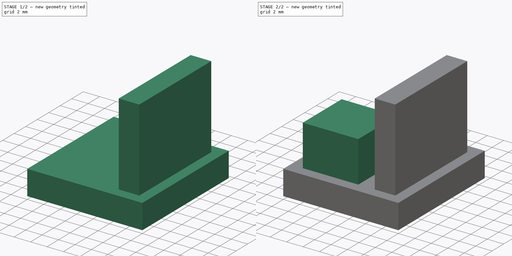
[diagram: build sequence overview — one tinted view per stage of 2, left to right]
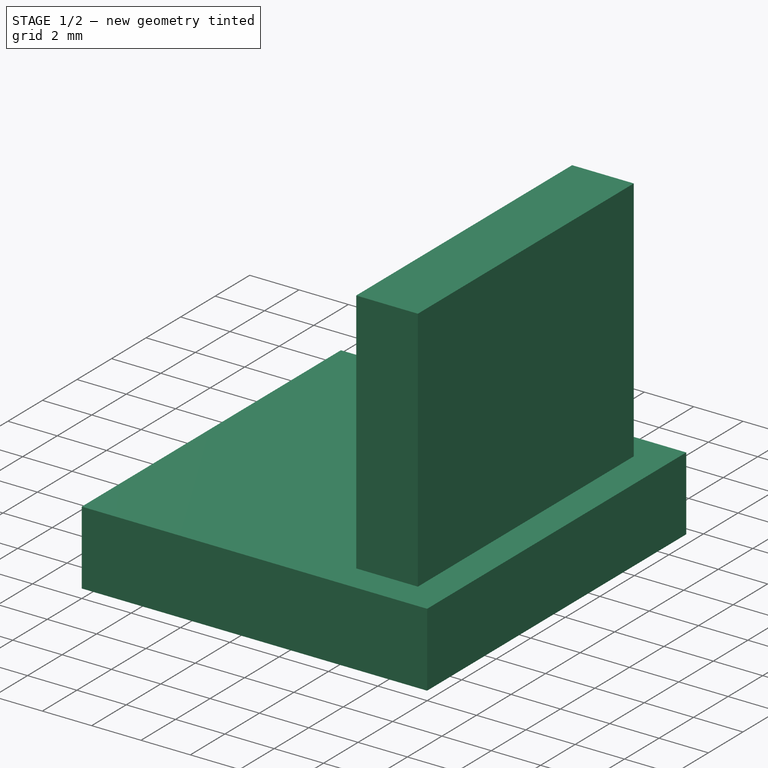
[diagram: stage 1 of 2 — iso view after this stage's code; geometry added in this stage tinted green]
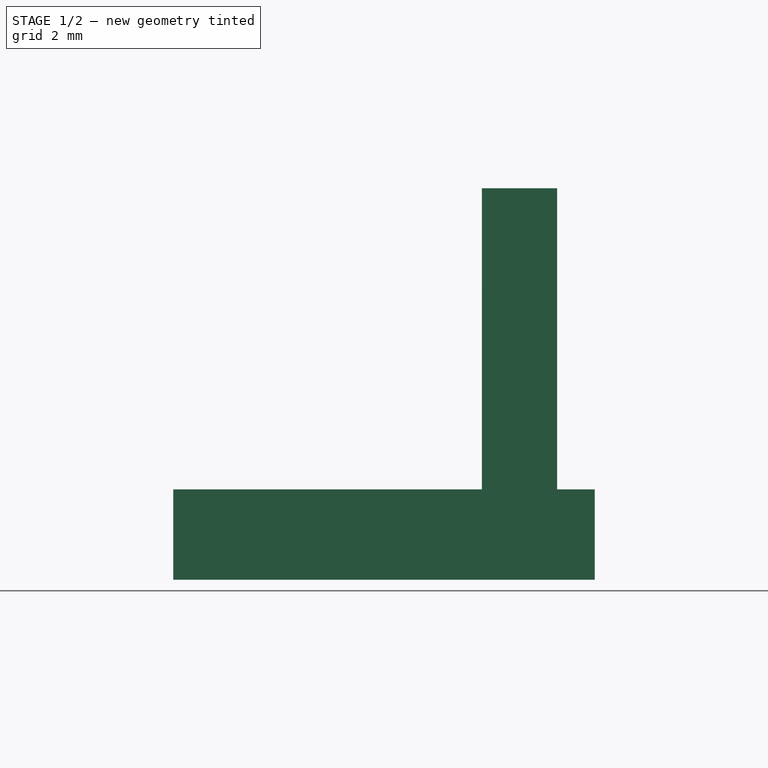
[diagram: stage 1 of 2 — front view after this stage's code; geometry added in this stage tinted green]
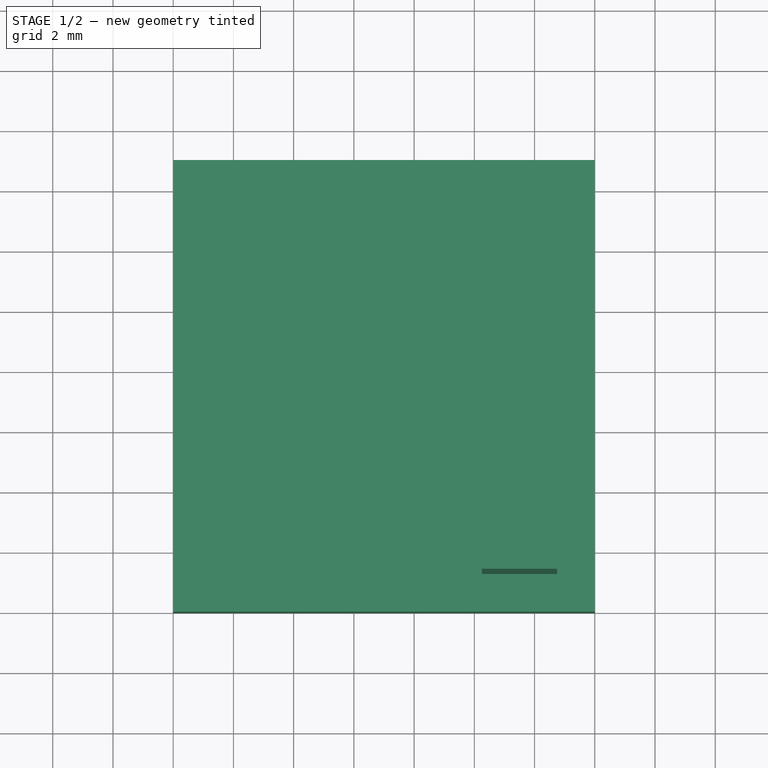
[diagram: stage 1 of 2 — top view after this stage's code; geometry added in this stage tinted green]
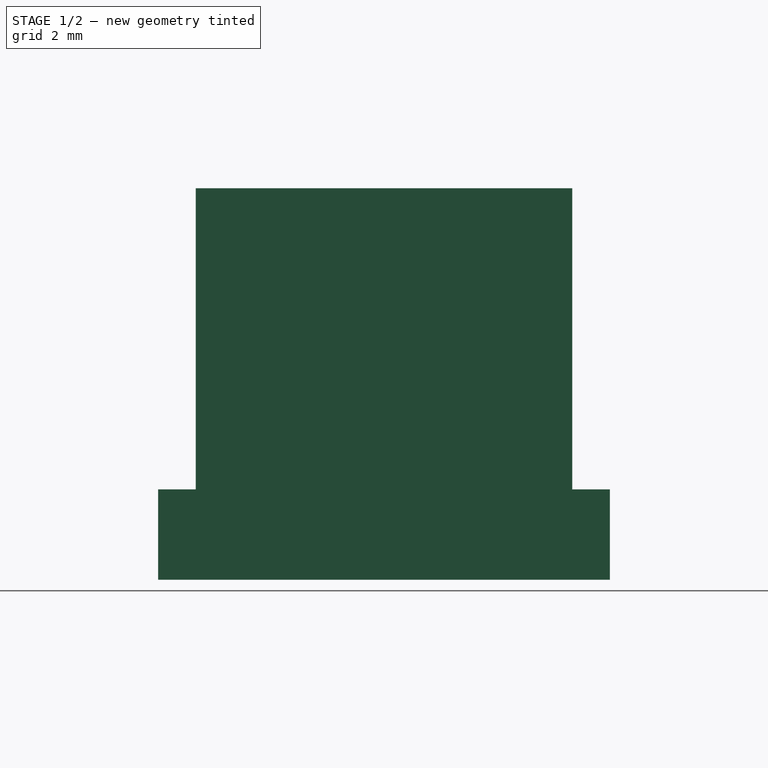
[diagram: stage 1 of 2 — right view after this stage's code; geometry added in this stage tinted green]
FCSTD DOCUMENT  (FreeCAD 0.19R14555 (Git shallow))
Label: hub_button_press
License: All rights reserved
LicenseURL: http://en.wikipedia.org/wiki/All_rights_reserved
objects: Sketcher::SketchObject×3, PartDesign::Pad×3, PartDesign::Body×1
note: 10 computed .brp shape members not serialized (recipe doc carries the construction recipe); baked Part::Feature solids carry a one-line shape summary decoded from their .brp

FEATURE [Sketcher::SketchObject] Sketch
  FullyConstrained = true
  MapMode = 5
  Support = -> [XY_Plane]
  sketch-geometry (4):
    g0: LineSegment StartX=0 StartY=0 StartZ=0 EndX=14 EndY=0 EndZ=0
    g1: LineSegment StartX=14 StartY=0 StartZ=0 EndX=14 EndY=15 EndZ=0
    g2: LineSegment StartX=14 StartY=15 StartZ=0 EndX=0 EndY=15 EndZ=0
    g3: LineSegment StartX=0 StartY=15 StartZ=0 EndX=0 EndY=0 EndZ=0
  constraints (11):
    c: Coincident(g0,g1)
    c: Coincident(g1,g2)
    c: Coincident(g2,g3)
    c: Coincident(g3,g0)
    c: Horizontal(g0)
    c: Horizontal(g2)
    c: Vertical(g1)
    c: Vertical(g3)
    c: Coincident(g0,g-1)
    c: DistanceX(g0,g0) = 14
    c: DistanceY(g3,g3) = 15
FEATURE [PartDesign::Pad] Pad
  Direction = (1,1,1)
  Length = 3
  Length2 = 100
  Profile = -> Sketch
  Type = 0
FEATURE [Sketcher::SketchObject] Sketch001
  ExternalGeometry = -> [Pad]
  FullyConstrained = true
  MapMode = 5
  Placement = pos=(0,0,3) rot=(0,0,1;0rad)
  Support = -> [Pad]
  sketch-geometry (6):
    g0: LineSegment StartX=10.25 StartY=13.75 StartZ=0 EndX=12.75 EndY=13.75 EndZ=0
    g1: LineSegment StartX=12.75 StartY=13.75 StartZ=0 EndX=12.75 EndY=1.25 EndZ=0
    g2: LineSegment StartX=12.75 StartY=1.25 StartZ=0 EndX=10.25 EndY=1.25 EndZ=0
    g3: LineSegment StartX=10.25 StartY=1.25 StartZ=0 EndX=10.25 EndY=13.75 EndZ=0
    g4: LineSegment StartX=14 StartY=15 StartZ=0 EndX=12.75 EndY=13.75 EndZ=0
    g5: LineSegment StartX=14 StartY=0 StartZ=0 EndX=12.75 EndY=1.25 EndZ=0
  constraints (16):
    c: Coincident(g0,g1)
    c: Coincident(g1,g2)
    c: Coincident(g2,g3)
    c: Coincident(g3,g0)
    c: Horizontal(g0)
    c: Horizontal(g2)
    c: Vertical(g1)
    c: Vertical(g3)
    c: DistanceY(g1,g1) = 12.5
    c: DistanceX(g0,g0) = 2.5
    c: Coincident(g4,g-5)
    c: Coincident(g4,g0)
    c: Coincident(g5,g-4)
    c: Coincident(g5,g1)
    c: Equal(g4,g5)
    c: DistanceX(g1,g5) = 1.25
FEATURE [PartDesign::Pad] Pad001
  BaseFeature = -> Pad
  Direction = (1,1,1)
  Length = 10
  Length2 = 100
  Profile = -> Sketch001
  Type = 0
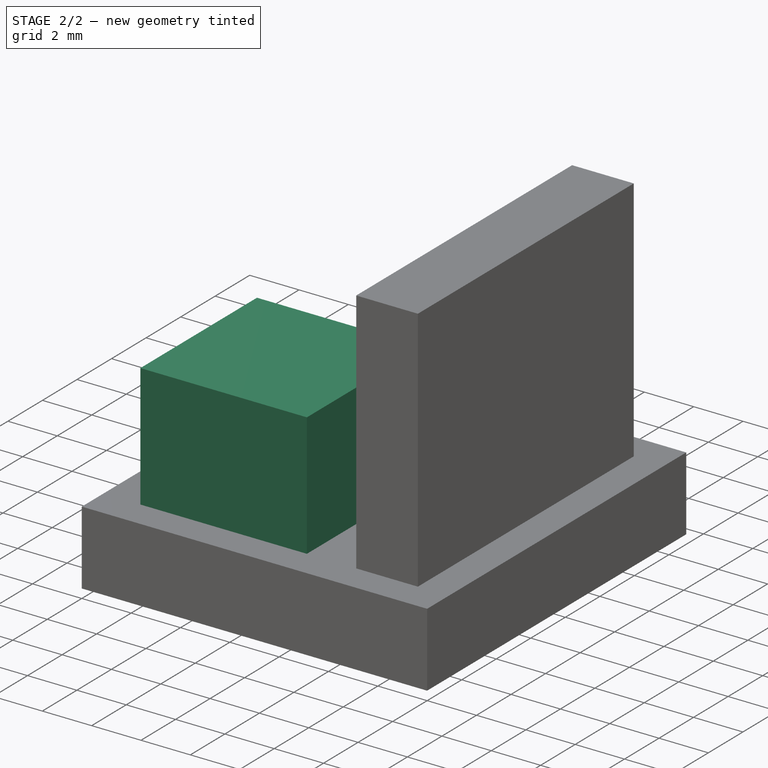
[diagram: stage 2 of 2 — iso view after this stage's code; geometry added in this stage tinted green]
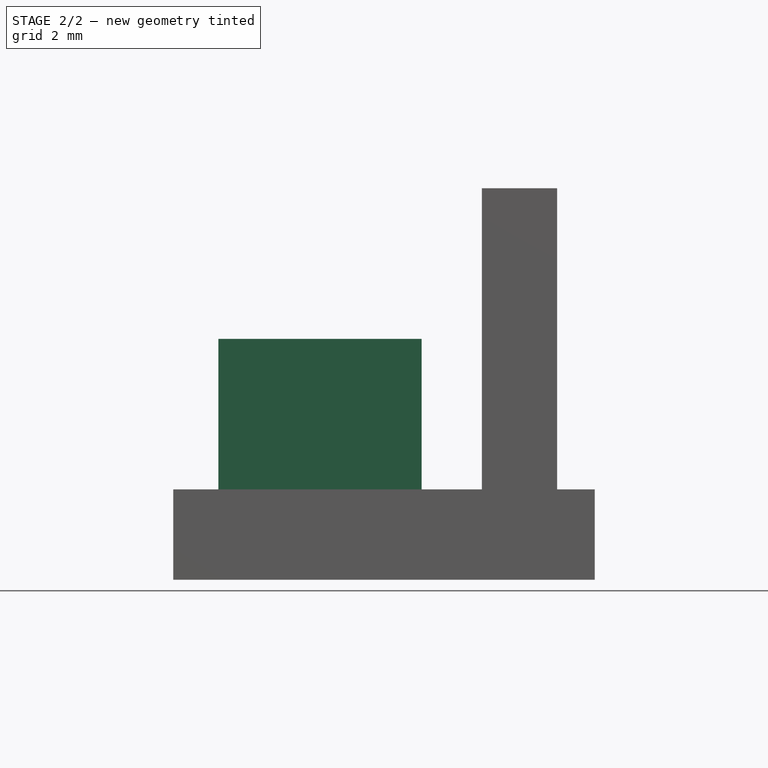
[diagram: stage 2 of 2 — front view after this stage's code; geometry added in this stage tinted green]
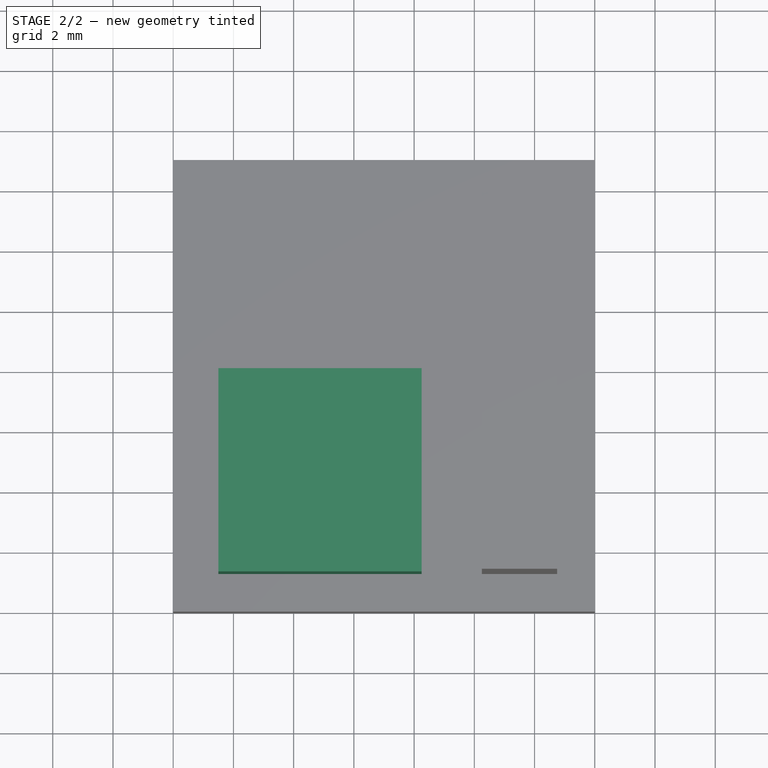
[diagram: stage 2 of 2 — top view after this stage's code; geometry added in this stage tinted green]
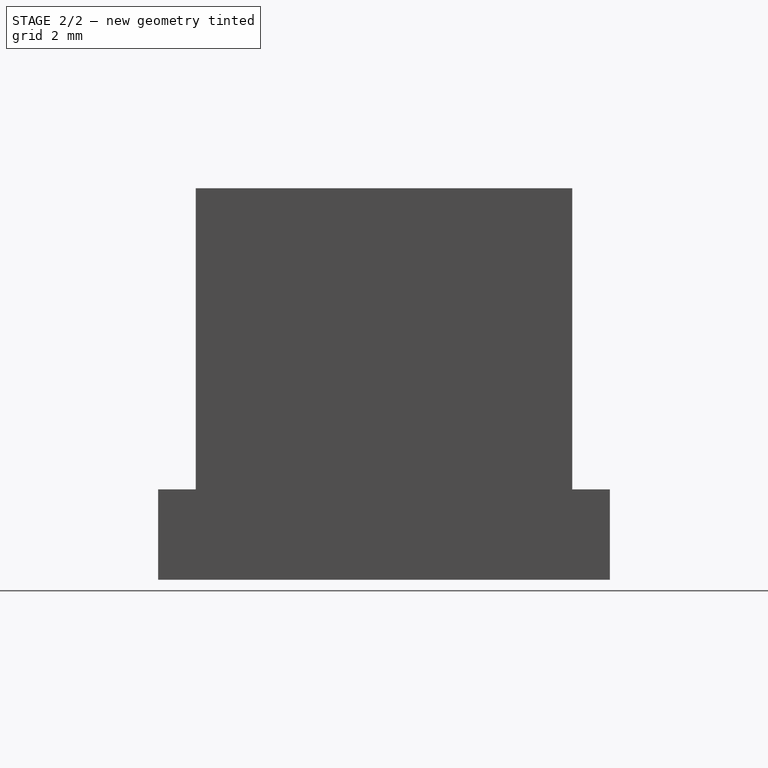
[diagram: stage 2 of 2 — right view after this stage's code; geometry added in this stage tinted green]
FEATURE [Sketcher::SketchObject] Sketch002
  ExternalGeometry = -> [Pad001]
  FullyConstrained = true
  MapMode = 5
  Placement = pos=(0,0,3) rot=(0,0,1;0rad)
  Support = -> [Pad001]
  sketch-geometry (6):
    g0: LineSegment StartX=1.5 StartY=8 StartZ=0 EndX=8.25 EndY=8 EndZ=0
    g1: LineSegment StartX=8.25 StartY=8 StartZ=0 EndX=8.25 EndY=1.25 EndZ=0
    g2: LineSegment StartX=8.25 StartY=1.25 StartZ=0 EndX=1.5 EndY=1.25 EndZ=0
    g3: LineSegment StartX=1.5 StartY=1.25 StartZ=0 EndX=1.5 EndY=8 EndZ=0
    g4: LineSegment StartX=8.25 StartY=1.25 StartZ=0 EndX=8.25 EndY=0 EndZ=0
    g5: LineSegment StartX=10.25 StartY=1.25 StartZ=0 EndX=10.25 EndY=0 EndZ=0
  constraints (18):
    c: Coincident(g0,g1)
    c: Coincident(g1,g2)
    c: Coincident(g2,g3)
    c: Coincident(g3,g0)
    c: Horizontal(g0)
    c: Horizontal(g2)
    c: Vertical(g1)
    c: Vertical(g3)
    c: DistanceX(g1,g-3) = 2
    c: Equal(g2,g1)
    c: DistanceX(g-1,g2) = 1.5
    c: Coincident(g4,g1)
    c: PointOnObject(g4,g-1)
    c: Vertical(g4)
    c: Coincident(g5,g-4)
    c: PointOnObject(g5,g-1)
    c: Vertical(g5)
    c: Equal(g4,g5)
FEATURE [PartDesign::Pad] Pad002
  BaseFeature = -> Pad001
  Direction = (1,1,1)
  Length = 5
  Length2 = 100
  Profile = -> Sketch002
  Type = 0
FEATURE [PartDesign::Body] Body
  Group = -> [Sketch,Pad,Sketch001,Pad001,Sketch002,Pad002]
  Origin = -> Origin
  Tip = -> Pad002
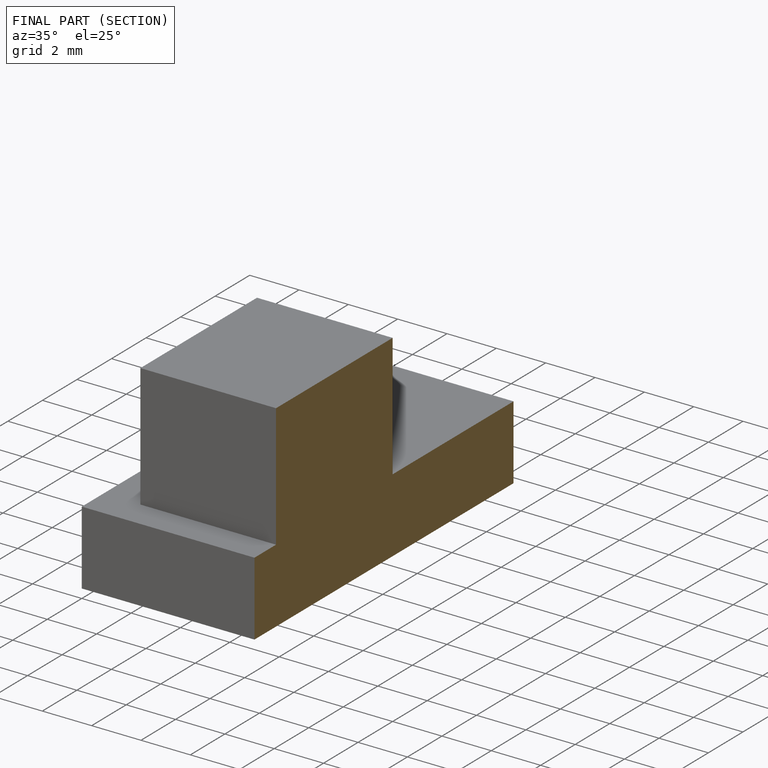
[diagram: finished part — half-section view (interior)]
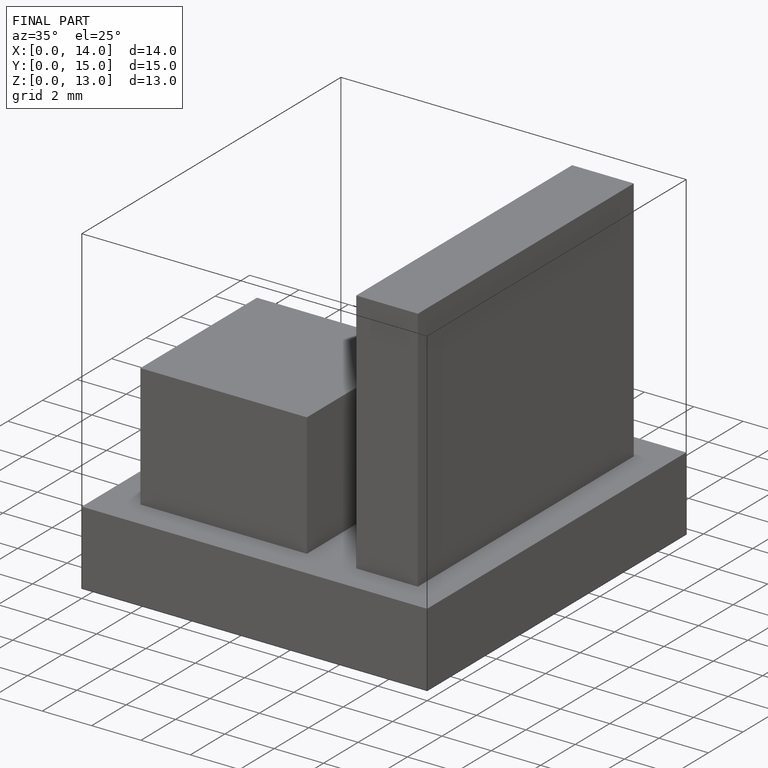
[diagram: finished part — iso view with bounding-box wireframe]
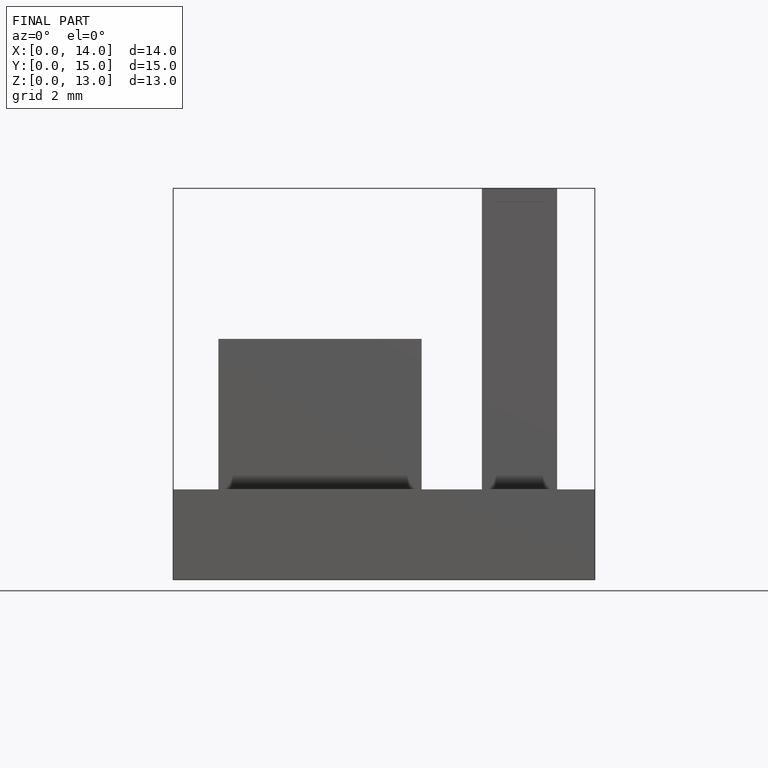
[diagram: finished part — front view with bounding-box wireframe]
